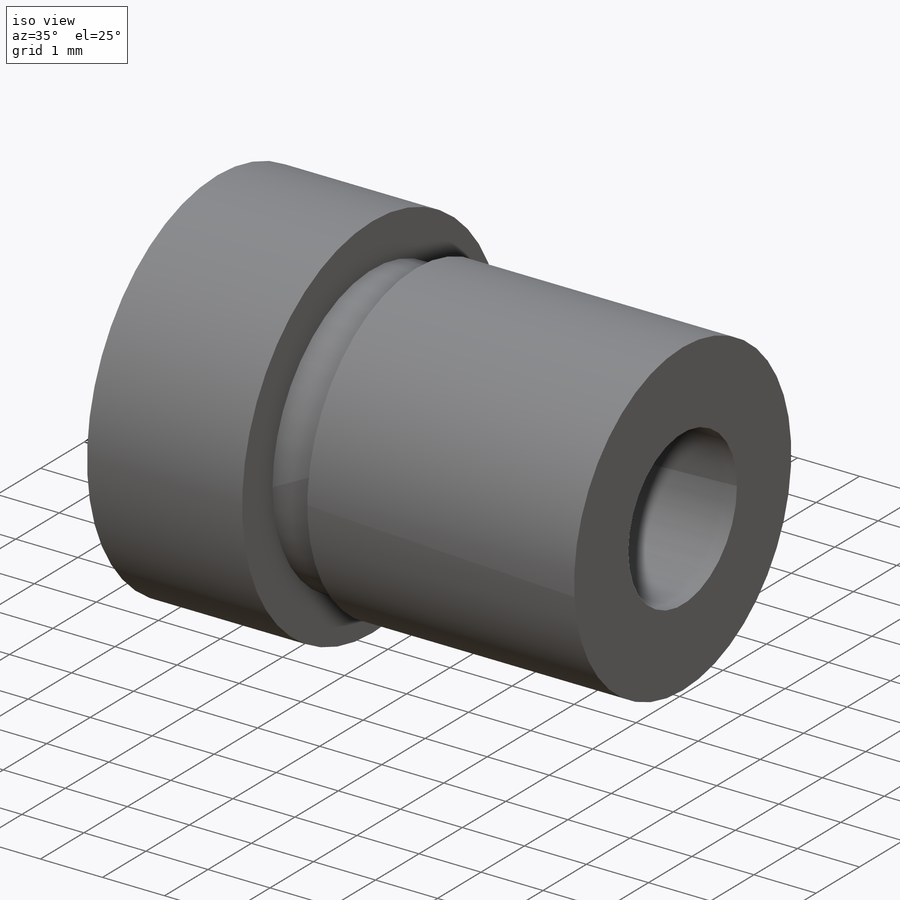
[diagram: iso view]
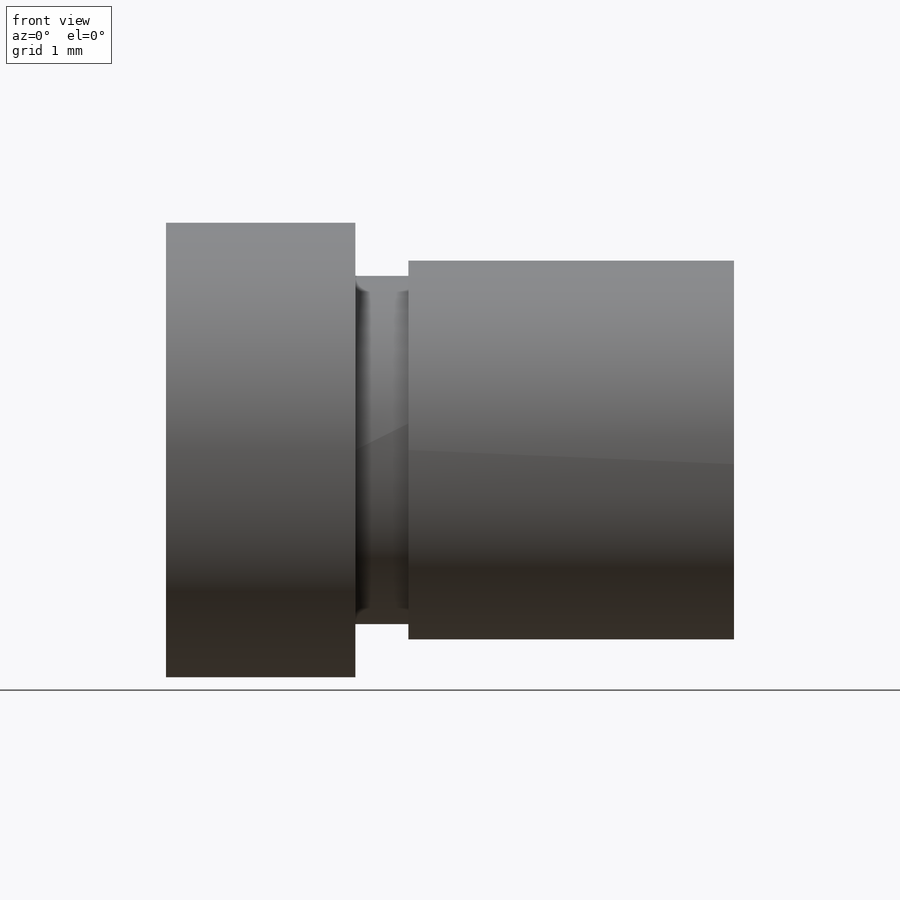
[diagram: front view]
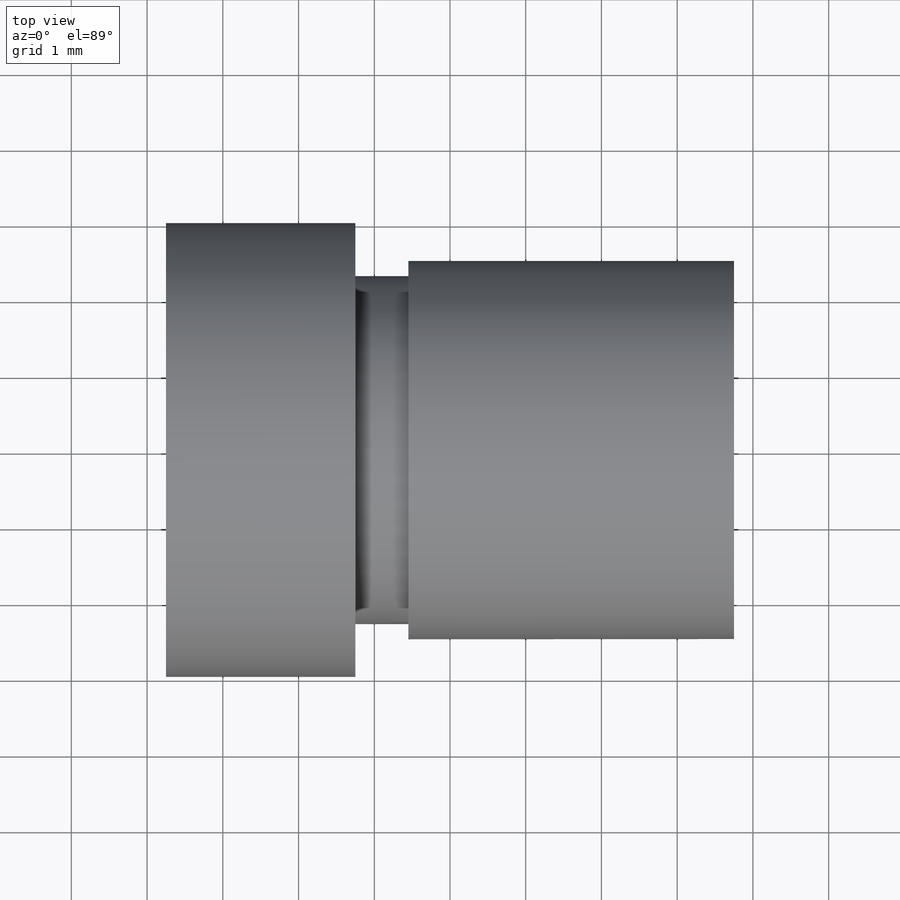
[diagram: top view]
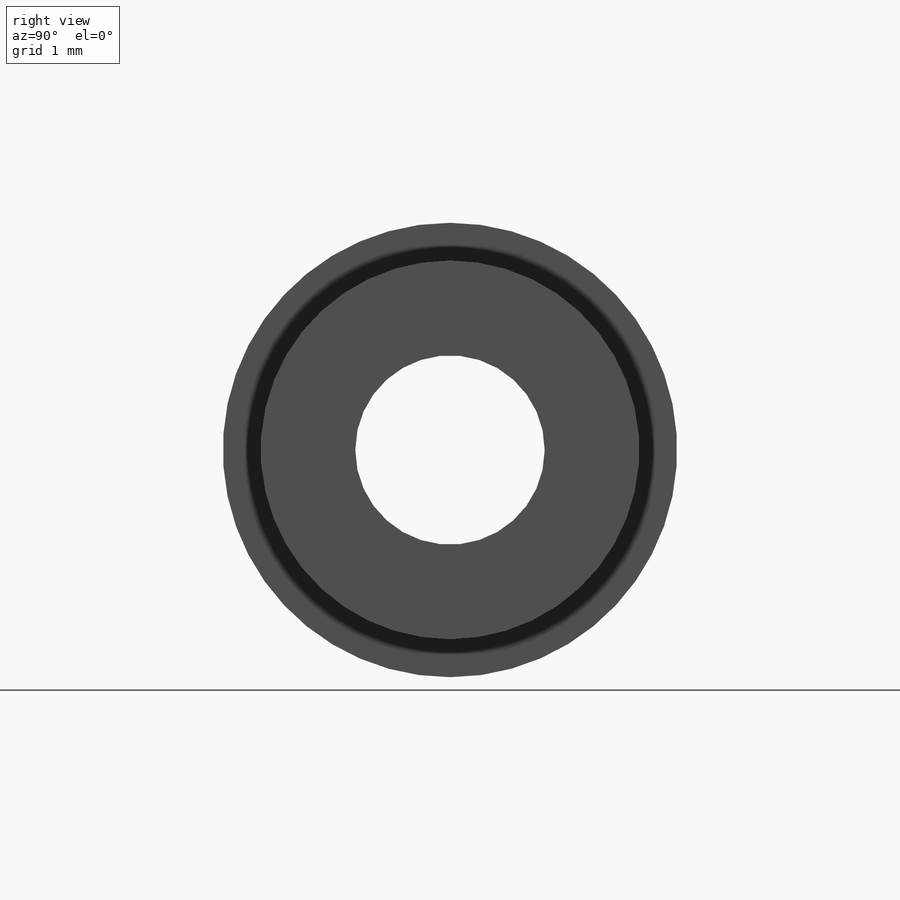
[diagram: right view]
SOLIDWORKS PART (.sldprt)
format: sldprt  version: not decoded by parser v0  size: 208,384 bytes
history: native  units: mm
features: sketch x4, material x1, revolve x1, hole x1, thread x1, cut_revolve x1 (+12 scaffold rows collapsed)
feature tree (21):
  scaffold x12  (default folders/planes/origin — collapsed)
  material  "Material <not specified>"
  sketch  "Sketch1"  dims[D1=5.0mm D2=6.0mm D3=2.5mm D4=5.0mm]
  revolve  "Revolve1"  Angle=360deg
  hole  "Trou taraudé M31"  Diameter=2.5mm Depth=7.5mm
  sketch  "Sketch3"
  sketch  "Sketch2"  dims[hole-wizard template sketch: 60 standard entries collapsed; hole parameters kept: c18.Profondeur du trou pour taraudage jusqu'au prochain=7.5mm]
  thread  "Filetage de perçage1"  Diameter=3mm  [1 undecoded]
  sketch  "Sketch4"  dims[D1=0.2mm D2=0.7mm]
  cut_revolve  "Cut-Revolve1"  Angle=360deg
decode coverage: 7 of 8 modeling features carry decoded parameters
note: ~ marks probable driven/reference dimensions
note: 1 parameter value undecoded
note: suppression state not decoded; provenance and decode notes live in map.json
